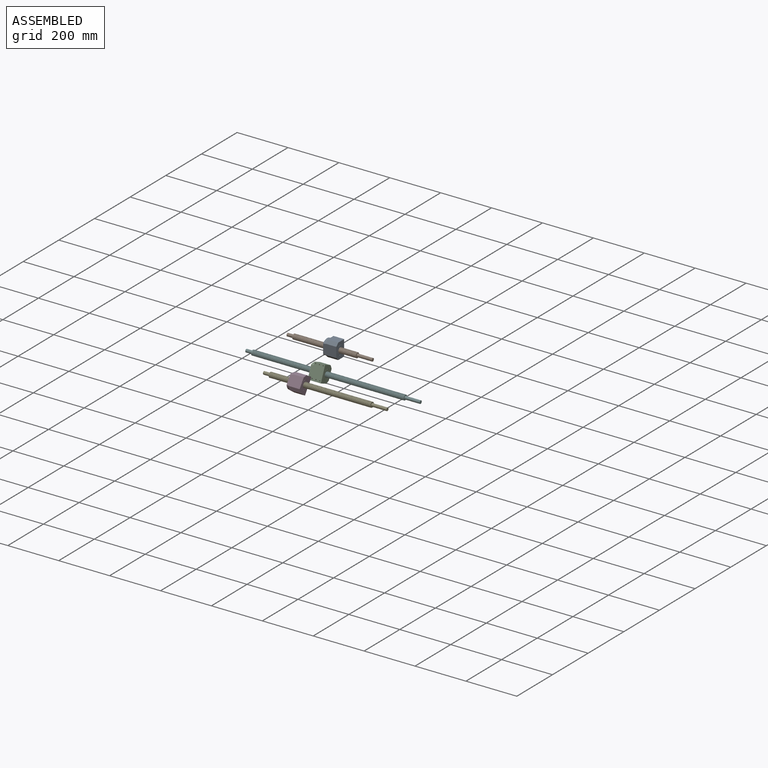
[diagram: assembled view]
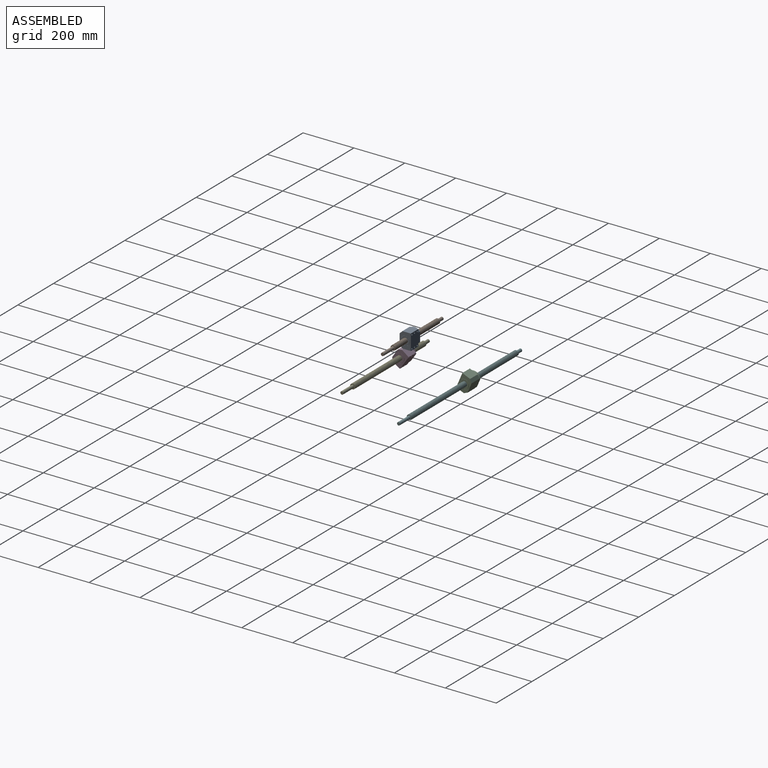
[diagram: assembled view, second angle]
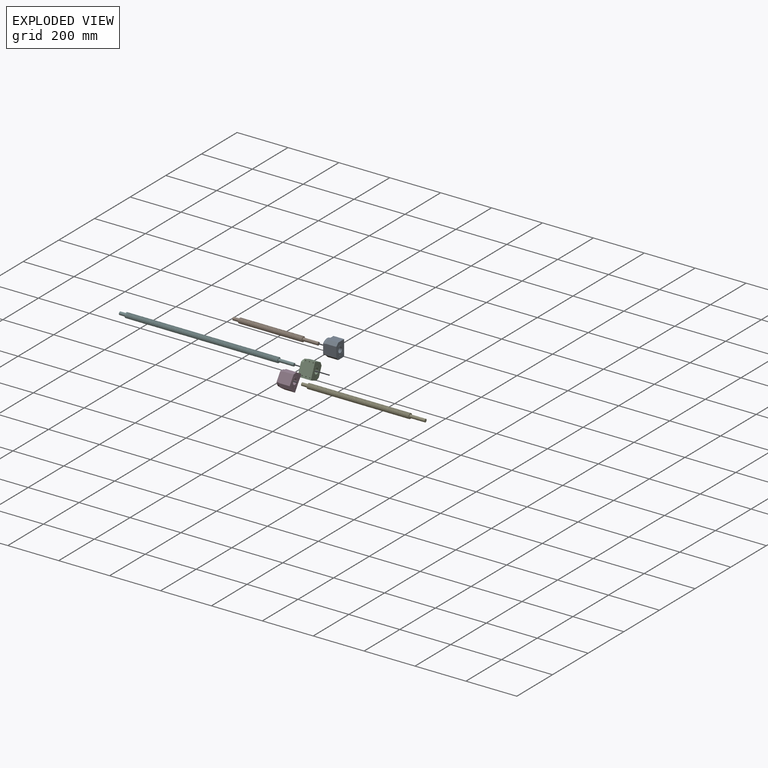
[diagram: exploded view]
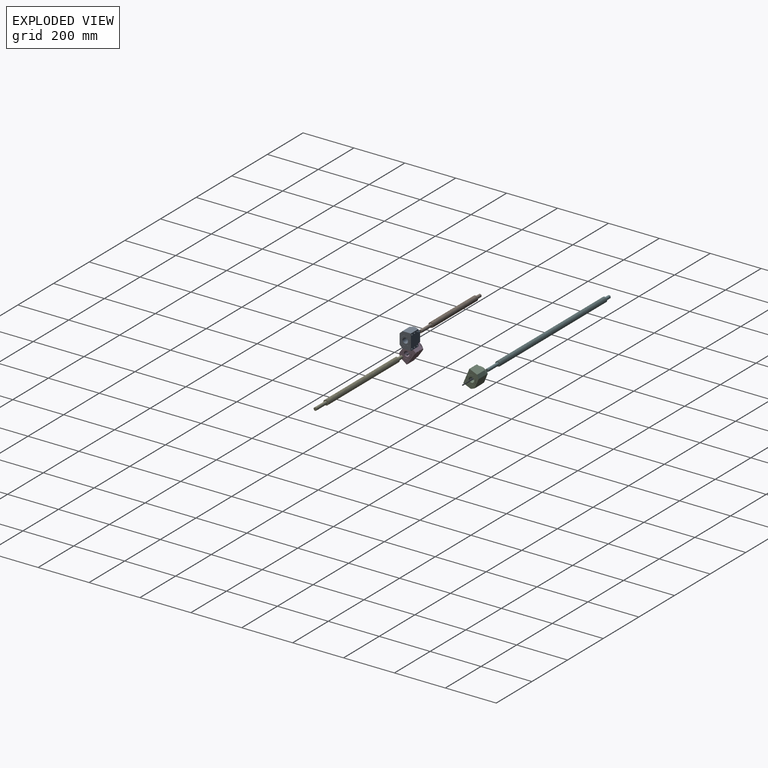
[diagram: exploded view, second angle]
ASSEMBLY  parts=6 mates=3
PART A: 62 faces, bbox 52x44.6x62 mm
  f0: cone r=17.72mm half-angle=45deg, axis (-1,0,0), area 56.4mm2, adj f1,f35
  f1: cylinder r=17.9mm len=35.8mm, axis (-1,0,0), area 3558.7mm2, adj f0,f34
  f2: cone r=28.82mm half-angle=45deg, axis (-1,0,0), area 25.3mm2, adj f3,f31,f32,f44
  f3: cylinder r=29mm len=44mm, axis (-1,0,0), area 463.7mm2, adj f2,f4,f31,f32
  f4: cone r=28.82mm half-angle=45deg, axis (1,0,0), area 25.3mm2, adj f3,f31,f32,f33
  f5: cone r=3.63mm half-angle=45deg, axis (-1,0,0), area 21.3mm2, adj f6,f33
  f6: cylinder r=3.3mm len=8.68mm, axis (1,0,0), area 180mm2, adj f5,f7
  f7: cone r=3.63mm half-angle=45deg, axis (1,0,0), area 21.3mm2, adj f6,f36
  f8: cone r=3.63mm half-angle=45deg, axis (-1,0,0), area 21.3mm2, adj f9,f33
  f9: cylinder r=3.3mm len=8.68mm, axis (1,0,0), area 180mm2, adj f8,f10
  f10: cone r=3.63mm half-angle=45deg, axis (1,0,0), area 21.3mm2, adj f9,f37
  f11: cone r=3.63mm half-angle=45deg, axis (-1,0,0), area 21.3mm2, adj f12,f33
  f12: cylinder r=3.3mm len=8.68mm, axis (1,0,0), area 180mm2, adj f11,f13
  f13: cone r=3.63mm half-angle=45deg, axis (1,0,0), area 21.3mm2, adj f12,f38
  f14: cone r=3.63mm half-angle=45deg, axis (-1,0,0), area 21.3mm2, adj f15,f33
  f15: cylinder r=3.3mm len=8.68mm, axis (1,0,0), area 180mm2, adj f14,f16
  f16: cone r=3.63mm half-angle=45deg, axis (1,0,0), area 21.3mm2, adj f15,f39
  f17: cone r=3.63mm half-angle=45deg, axis (-1,0,0), area 21.3mm2, adj f18,f33
  f18: cylinder r=3.3mm len=8.68mm, axis (1,0,0), area 180mm2, adj f17,f19
  f19: cone r=3.63mm half-angle=45deg, axis (1,0,0), area 21.3mm2, adj f18,f40
  f20: cone r=3.63mm half-angle=45deg, axis (-1,0,0), area 21.3mm2, adj f21,f33
  f21: cylinder r=3.3mm len=8.68mm, axis (1,0,0), area 180mm2, adj f20,f22
  f22: cone r=3.63mm half-angle=45deg, axis (1,0,0), area 21.3mm2, adj f21,f41
  f23: cone r=28.82mm half-angle=45deg, axis (1,0,0), area 25.3mm2, adj f24,f31,f32,f33
  f24: cylinder r=29mm len=44mm, axis (-1,0,0), area 444.1mm2, adj f23,f25,f29,f31,f32
  f25: cone r=28.82mm half-angle=45deg, axis (-1,0,0), area 25.3mm2, adj f24,f31,f32,f43
  f26: cone r=10.2mm half-angle=45deg, axis (-1,0,0), area 36.3mm2, adj f27,f33
  f27: cylinder r=10mm len=51.2mm, axis (1,0,0), area 3217mm2, adj f26,f28
  f28: cone r=10.2mm half-angle=45deg, axis (1,0,0), area 36.3mm2, adj f27,f35
  f29: cylinder r=2.5mm len=12.08mm, axis (0,-0.38,-0.92), area 172.8mm2, adj f24,f30
  f30: cone r=1.25mm half-angle=59deg, axis (0,0.38,0.92), area 22.9mm2, adj f29
  f31: plane 62x52mm, normal (0,1,0), area 2863.7mm2, adj f2,f3,f4,f23,f24,f25,f33,f43
  f32: plane 52x40mm, normal (0,-1,0), area 2057.5mm2, adj f2,f3,f4,f23,f24,f25,f33,f43
  f33: plane 57.28x44mm, normal (-1,0,0), area 1608.7mm2, adj f4,f5,f8,f11,f14,f17,f20,f23
  f34: plane 36x36mm, normal (1,0,0), area 11.3mm2, adj f1,f42
  f35: plane 35.08x35.08mm, normal (1,0,0), area 626.9mm2, adj f0,f28
  f36: plane 7.92x7.92mm, normal (-1,0,0), area 49.3mm2, adj f7
  f37: plane 7.92x7.92mm, normal (-1,0,0), area 49.3mm2, adj f10
  f38: plane 7.92x7.92mm, normal (-1,0,0), area 49.3mm2, adj f13
  f39: plane 7.92x7.92mm, normal (-1,0,0), area 49.3mm2, adj f16
  f40: plane 7.92x7.92mm, normal (-1,0,0), area 49.3mm2, adj f19
  f41: plane 7.92x7.92mm, normal (-1,0,0), area 49.3mm2, adj f22
  f42: cylinder r=18mm len=36mm, axis (-1,0,0), area 3619.1mm2, adj f34,f49
  f43: plane 44x12.66mm, normal (-1,0,0), area 181.5mm2, adj f25,f31,f32,f47,f48
  f44: plane 44x12.66mm, normal (-1,0,0), area 181.5mm2, adj f2,f31,f32,f45,f46
  f45: plane 42x11mm, normal (0,-0.71,-0.71), area 653.4mm2, adj f32,f44,f46,f49
  f46: plane 42x33mm, normal (0,0,-1), area 1386mm2, adj f31,f44,f45,f49
  f47: plane 42x33mm, normal (0,0,1), area 1386mm2, adj f31,f43,f48,f49
  f48: plane 42x11mm, normal (0,-0.71,0.71), area 653.4mm2, adj f32,f43,f47,f49
  f49: plane 62x44mm, normal (1,0,0), area 1589.1mm2, adj f31,f32,f42,f45,f46,f47,f48
  f50: cylinder r=2.5mm len=16mm, axis (0,1,0), area 251.3mm2, adj f31,f51
  f51: plane 5x5mm, normal (0,1,0), area 19.6mm2, adj f50
  f52: cylinder r=2.5mm len=16mm, axis (0,1,0), area 251.3mm2, adj f31,f53
  f53: plane 5x5mm, normal (0,1,0), area 19.6mm2, adj f52
  f54: cylinder r=2.5mm len=16mm, axis (0,1,0), area 251.3mm2, adj f31,f55
  f55: plane 5x5mm, normal (0,1,0), area 19.6mm2, adj f54
  f56: cylinder r=2.5mm len=16mm, axis (0,1,0), area 251.3mm2, adj f31,f57
  f57: plane 5x5mm, normal (0,1,0), area 19.6mm2, adj f56
  f58: cylinder r=2.5mm len=16mm, axis (0,1,0), area 251.3mm2, adj f31,f59
  f59: plane 5x5mm, normal (0,1,0), area 19.6mm2, adj f58
  f60: cylinder r=2.5mm len=16mm, axis (0,1,0), area 251.3mm2, adj f31,f61
  f61: plane 5x5mm, normal (0,1,0), area 19.6mm2, adj f60
PART B: 58 faces, bbox 336.2x21.2x21.2 mm
  f0: cylinder r=6mm len=60mm, axis (-1,0,0), area 2261.9mm2, adj f1,f55
  f1: plane 21.25x19.99mm, normal (1,0,0), area 171.8mm2, adj f0,f51,f57
  f2: cylinder r=10mm len=20mm, axis (-1,0,0), area 157.1mm2, adj f3,f51,f57
  f3: cylinder r=10mm len=20mm, axis (-1,0,0), area 157.1mm2, adj f2,f4,f57
  f4: cylinder r=10mm len=20mm, axis (-1,0,0), area 157.1mm2, adj f3,f5,f57
  f5: cylinder r=10mm len=20mm, axis (-1,0,0), area 157.1mm2, adj f4,f6,f57
  f6: cylinder r=10mm len=20mm, axis (-1,0,0), area 157.1mm2, adj f5,f7,f57
  f7: cylinder r=10mm len=20mm, axis (-1,0,0), area 157.1mm2, adj f6,f8,f57
  f8: cylinder r=10mm len=20mm, axis (-1,0,0), area 157.1mm2, adj f7,f9,f57
  f9: cylinder r=10mm len=20mm, axis (-1,0,0), area 157.1mm2, adj f8,f10,f57
  f10: cylinder r=10mm len=20mm, axis (-1,0,0), area 157.1mm2, adj f9,f11,f57
  f11: cylinder r=10mm len=20mm, axis (-1,0,0), area 157.1mm2, adj f10,f12,f57
  f12: cylinder r=10mm len=20mm, axis (-1,0,0), area 157.1mm2, adj f11,f13,f57
  f13: cylinder r=10mm len=20mm, axis (-1,0,0), area 157.1mm2, adj f12,f14,f57
  f14: cylinder r=10mm len=20mm, axis (-1,0,0), area 157.1mm2, adj f13,f15,f57
  f15: cylinder r=10mm len=20mm, axis (-1,0,0), area 157.1mm2, adj f14,f16,f57
  f16: cylinder r=10mm len=20mm, axis (-1,0,0), area 157.1mm2, adj f15,f17,f57
  f17: cylinder r=10mm len=20mm, axis (-1,0,0), area 157.1mm2, adj f16,f18,f57
  f18: cylinder r=10mm len=20mm, axis (-1,0,0), area 157.1mm2, adj f17,f19,f57
  f19: cylinder r=10mm len=20mm, axis (-1,0,0), area 157.1mm2, adj f18,f20,f57
  f20: cylinder r=10mm len=20mm, axis (-1,0,0), area 157.1mm2, adj f19,f21,f57
  f21: cylinder r=10mm len=20mm, axis (-1,0,0), area 157.1mm2, adj f20,f22,f57
  f22: cylinder r=10mm len=20mm, axis (-1,0,0), area 157.1mm2, adj f21,f23,f57
  f23: cylinder r=10mm len=20mm, axis (-1,0,0), area 157.1mm2, adj f22,f24,f57
  f24: cylinder r=10mm len=20mm, axis (-1,0,0), area 157.1mm2, adj f23,f25,f57
  f25: cylinder r=10mm len=20mm, axis (-1,0,0), area 157.1mm2, adj f24,f26,f57
  f26: cylinder r=10mm len=20mm, axis (-1,0,0), area 157.1mm2, adj f25,f27,f57
  f27: cylinder r=10mm len=20mm, axis (-1,0,0), area 157.1mm2, adj f26,f28,f57
  f28: cylinder r=10mm len=20mm, axis (-1,0,0), area 157.1mm2, adj f27,f29,f57
  f29: cylinder r=10mm len=20mm, axis (-1,0,0), area 157.1mm2, adj f28,f30,f57
  f30: cylinder r=10mm len=20mm, axis (-1,0,0), area 157.1mm2, adj f29,f31,f57
  f31: cylinder r=10mm len=20mm, axis (-1,0,0), area 157.1mm2, adj f30,f32,f57
  f32: cylinder r=10mm len=20mm, axis (-1,0,0), area 157.1mm2, adj f31,f33,f57
  f33: cylinder r=10mm len=20mm, axis (-1,0,0), area 157.1mm2, adj f32,f34,f57
  f34: cylinder r=10mm len=20mm, axis (-1,0,0), area 157.1mm2, adj f33,f35,f57
  f35: cylinder r=10mm len=20mm, axis (-1,0,0), area 157.1mm2, adj f34,f36,f57
  f36: cylinder r=10mm len=20mm, axis (-1,0,0), area 157.1mm2, adj f35,f37,f57
  f37: cylinder r=10mm len=20mm, axis (-1,0,0), area 157.1mm2, adj f36,f38,f57
  f38: cylinder r=10mm len=20mm, axis (-1,0,0), area 157.1mm2, adj f37,f39,f57
  f39: cylinder r=10mm len=20mm, axis (-1,0,0), area 157.1mm2, adj f38,f40,f57
  f40: cylinder r=10mm len=20mm, axis (-1,0,0), area 157.1mm2, adj f39,f41,f57
  f41: cylinder r=10mm len=20mm, axis (-1,0,0), area 157.1mm2, adj f40,f42,f57
  f42: cylinder r=10mm len=20mm, axis (-1,0,0), area 157.1mm2, adj f41,f43,f57
  f43: cylinder r=10mm len=20mm, axis (-1,0,0), area 157.1mm2, adj f42,f44,f57
  f44: cylinder r=10mm len=20mm, axis (-1,0,0), area 157.1mm2, adj f43,f45,f57
  f45: cylinder r=10mm len=20mm, axis (-1,0,0), area 157.1mm2, adj f44,f46,f57
  f46: cylinder r=10mm len=20mm, axis (-1,0,0), area 157.1mm2, adj f45,f47,f57
  f47: cylinder r=10mm len=20mm, axis (-1,0,0), area 157.1mm2, adj f46,f48,f57
  f48: cylinder r=10mm len=20mm, axis (-1,0,0), area 157.1mm2, adj f47,f49,f57
  f49: cylinder r=10mm len=20mm, axis (-1,0,0), area 157.1mm2, adj f48,f50,f57
  f50: cylinder r=10mm len=20mm, axis (-1,0,0), area 353.4mm2, adj f49,f52,f56,f57
  f51: cylinder r=10mm len=20mm, axis (-1,0,0), area 39.3mm2, adj f1,f2,f57
  f52: plane 20x20mm, normal (-1,0,0), area 201.1mm2, adj f50,f53
  f53: cylinder r=6mm len=25mm, axis (-1,0,0), area 942.5mm2, adj f52,f54
  f54: plane 12x12mm, normal (-1,0,0), area 113.1mm2, adj f53
  f55: plane 12x12mm, normal (1,0,0), area 113.1mm2, adj f0
  f56: plane 2.85x1.6mm, normal (0,0,-1), area 2.5mm2, adj f50,f57
  f57: bspline ~251.25x20mm, area 11263.4mm2, adj f1,f2,f3,f4,f5,f6,f7,f8
PART C: same geometry as A
PART D: same geometry as A
PART E: 89 faces, bbox 485.9x22.7x26.1 mm
  f0: cylinder r=6mm len=60mm, axis (-1,0,0), area 2261.9mm2, adj f1,f85
  f1: plane 20.95x20.95mm, normal (1,0,0), area 186.4mm2, adj f0,f80,f81,f87,f88
  f2: cylinder r=10mm len=20mm, axis (-1,0,0), area 490.9mm2, adj f3,f82,f86,f87,f88
  f3: cylinder r=10mm len=20mm, axis (-1,0,0), area 235.6mm2, adj f2,f4,f87,f88
  f4: cylinder r=10mm len=20mm, axis (-1,0,0), area 235.6mm2, adj f3,f5,f87,f88
  f5: cylinder r=10mm len=20mm, axis (-1,0,0), area 235.6mm2, adj f4,f6,f87,f88
  f6: cylinder r=10mm len=20mm, axis (-1,0,0), area 235.6mm2, adj f5,f7,f87,f88
  f7: cylinder r=10mm len=20mm, axis (-1,0,0), area 235.6mm2, adj f6,f8,f87,f88
  f8: cylinder r=10mm len=20mm, axis (-1,0,0), area 235.6mm2, adj f7,f9,f87,f88
  f9: cylinder r=10mm len=20mm, axis (-1,0,0), area 235.6mm2, adj f8,f10,f87,f88
  f10: cylinder r=10mm len=20mm, axis (-1,0,0), area 235.6mm2, adj f9,f11,f87,f88
  f11: cylinder r=10mm len=20mm, axis (-1,0,0), area 235.6mm2, adj f10,f12,f87,f88
  f12: cylinder r=10mm len=20mm, axis (-1,0,0), area 235.6mm2, adj f11,f13,f87,f88
  f13: cylinder r=10mm len=20mm, axis (-1,0,0), area 235.6mm2, adj f12,f14,f87,f88
  f14: cylinder r=10mm len=20mm, axis (-1,0,0), area 235.6mm2, adj f13,f15,f87,f88
  f15: cylinder r=10mm len=20mm, axis (-1,0,0), area 235.6mm2, adj f14,f16,f87,f88
  f16: cylinder r=10mm len=20mm, axis (-1,0,0), area 235.6mm2, adj f15,f17,f87,f88
  f17: cylinder r=10mm len=20mm, axis (-1,0,0), area 235.6mm2, adj f16,f18,f87,f88
  f18: cylinder r=10mm len=20mm, axis (-1,0,0), area 235.6mm2, adj f17,f19,f87,f88
  f19: cylinder r=10mm len=20mm, axis (-1,0,0), area 235.6mm2, adj f18,f20,f87,f88
  f20: cylinder r=10mm len=20mm, axis (-1,0,0), area 235.6mm2, adj f19,f21,f87,f88
  f21: cylinder r=10mm len=20mm, axis (-1,0,0), area 235.6mm2, adj f20,f22,f87,f88
  f22: cylinder r=10mm len=20mm, axis (-1,0,0), area 235.6mm2, adj f21,f23,f87,f88
  f23: cylinder r=10mm len=20mm, axis (-1,0,0), area 235.6mm2, adj f22,f24,f87,f88
  f24: cylinder r=10mm len=20mm, axis (-1,0,0), area 235.6mm2, adj f23,f25,f87,f88
  f25: cylinder r=10mm len=20mm, axis (-1,0,0), area 235.6mm2, adj f24,f26,f87,f88
  f26: cylinder r=10mm len=20mm, axis (-1,0,0), area 235.6mm2, adj f25,f27,f87,f88
  f27: cylinder r=10mm len=20mm, axis (-1,0,0), area 235.6mm2, adj f26,f28,f87,f88
  f28: cylinder r=10mm len=20mm, axis (-1,0,0), area 235.6mm2, adj f27,f29,f87,f88
  f29: cylinder r=10mm len=20mm, axis (-1,0,0), area 235.6mm2, adj f28,f30,f87,f88
  f30: cylinder r=10mm len=20mm, axis (-1,0,0), area 235.6mm2, adj f29,f31,f87,f88
  f31: cylinder r=10mm len=20mm, axis (-1,0,0), area 235.6mm2, adj f30,f32,f87,f88
  f32: cylinder r=10mm len=20mm, axis (-1,0,0), area 235.6mm2, adj f31,f33,f87,f88
  f33: cylinder r=10mm len=20mm, axis (-1,0,0), area 235.6mm2, adj f32,f34,f87,f88
  f34: cylinder r=10mm len=20mm, axis (-1,0,0), area 235.6mm2, adj f33,f35,f87,f88
  f35: cylinder r=10mm len=20mm, axis (-1,0,0), area 235.6mm2, adj f34,f36,f87,f88
  f36: cylinder r=10mm len=20mm, axis (-1,0,0), area 235.6mm2, adj f35,f37,f87,f88
  f37: cylinder r=10mm len=20mm, axis (-1,0,0), area 235.6mm2, adj f36,f38,f87,f88
  f38: cylinder r=10mm len=20mm, axis (-1,0,0), area 235.6mm2, adj f37,f39,f87,f88
  f39: cylinder r=10mm len=20mm, axis (-1,0,0), area 235.6mm2, adj f38,f40,f87,f88
  f40: cylinder r=10mm len=20mm, axis (-1,0,0), area 235.6mm2, adj f39,f41,f87,f88
  f41: cylinder r=10mm len=20mm, axis (-1,0,0), area 235.6mm2, adj f40,f42,f87,f88
  f42: cylinder r=10mm len=20mm, axis (-1,0,0), area 235.6mm2, adj f41,f43,f87,f88
  f43: cylinder r=10mm len=20mm, axis (-1,0,0), area 235.6mm2, adj f42,f44,f87,f88
  f44: cylinder r=10mm len=20mm, axis (-1,0,0), area 235.6mm2, adj f43,f45,f87,f88
  f45: cylinder r=10mm len=20mm, axis (-1,0,0), area 235.6mm2, adj f44,f46,f87,f88
  f46: cylinder r=10mm len=20mm, axis (-1,0,0), area 235.6mm2, adj f45,f47,f87,f88
  f47: cylinder r=10mm len=20mm, axis (-1,0,0), area 235.6mm2, adj f46,f48,f87,f88
  f48: cylinder r=10mm len=20mm, axis (-1,0,0), area 235.6mm2, adj f47,f49,f87,f88
  f49: cylinder r=10mm len=20mm, axis (-1,0,0), area 235.6mm2, adj f48,f50,f87,f88
  f50: cylinder r=10mm len=20mm, axis (-1,0,0), area 235.6mm2, adj f49,f51,f87,f88
  f51: cylinder r=10mm len=20mm, axis (-1,0,0), area 235.6mm2, adj f50,f52,f87,f88
  f52: cylinder r=10mm len=20mm, axis (-1,0,0), area 235.6mm2, adj f51,f53,f87,f88
  f53: cylinder r=10mm len=20mm, axis (-1,0,0), area 235.6mm2, adj f52,f54,f87,f88
  f54: cylinder r=10mm len=20mm, axis (-1,0,0), area 235.6mm2, adj f53,f55,f87,f88
  f55: cylinder r=10mm len=20mm, axis (-1,0,0), area 235.6mm2, adj f54,f56,f87,f88
  f56: cylinder r=10mm len=20mm, axis (-1,0,0), area 235.6mm2, adj f55,f57,f87,f88
  f57: cylinder r=10mm len=20mm, axis (-1,0,0), area 235.6mm2, adj f56,f58,f87,f88
  f58: cylinder r=10mm len=20mm, axis (-1,0,0), area 235.6mm2, adj f57,f59,f87,f88
  f59: cylinder r=10mm len=20mm, axis (-1,0,0), area 235.6mm2, adj f58,f60,f87,f88
  f60: cylinder r=10mm len=20mm, axis (-1,0,0), area 235.6mm2, adj f59,f61,f87,f88
  f61: cylinder r=10mm len=20mm, axis (-1,0,0), area 235.6mm2, adj f60,f62,f87,f88
  f62: cylinder r=10mm len=20mm, axis (-1,0,0), area 235.6mm2, adj f61,f63,f87,f88
  f63: cylinder r=10mm len=20mm, axis (-1,0,0), area 235.6mm2, adj f62,f64,f87,f88
  f64: cylinder r=10mm len=20mm, axis (-1,0,0), area 235.6mm2, adj f63,f65,f87,f88
  f65: cylinder r=10mm len=20mm, axis (-1,0,0), area 235.6mm2, adj f64,f66,f87,f88
  f66: cylinder r=10mm len=20mm, axis (-1,0,0), area 235.6mm2, adj f65,f67,f87,f88
  f67: cylinder r=10mm len=20mm, axis (-1,0,0), area 235.6mm2, adj f66,f68,f87,f88
  f68: cylinder r=10mm len=20mm, axis (-1,0,0), area 235.6mm2, adj f67,f69,f87,f88
  f69: cylinder r=10mm len=20mm, axis (-1,0,0), area 235.6mm2, adj f68,f70,f87,f88
  f70: cylinder r=10mm len=20mm, axis (-1,0,0), area 235.6mm2, adj f69,f71,f87,f88
  f71: cylinder r=10mm len=20mm, axis (-1,0,0), area 235.6mm2, adj f70,f72,f87,f88
  f72: cylinder r=10mm len=20mm, axis (-1,0,0), area 235.6mm2, adj f71,f73,f87,f88
  f73: cylinder r=10mm len=20mm, axis (-1,0,0), area 235.6mm2, adj f72,f74,f87,f88
  f74: cylinder r=10mm len=20mm, axis (-1,0,0), area 235.6mm2, adj f73,f75,f87,f88
  f75: cylinder r=10mm len=20mm, axis (-1,0,0), area 235.6mm2, adj f74,f76,f87,f88
  f76: cylinder r=10mm len=20mm, axis (-1,0,0), area 235.6mm2, adj f75,f77,f87,f88
  f77: cylinder r=10mm len=20mm, axis (-1,0,0), area 235.6mm2, adj f76,f78,f87,f88
  f78: cylinder r=10mm len=20mm, axis (-1,0,0), area 235.6mm2, adj f77,f79,f87,f88
  f79: cylinder r=10mm len=20mm, axis (-1,0,0), area 235.6mm2, adj f78,f80,f87,f88
  f80: cylinder r=10mm len=20mm, axis (-1,0,0), area 225.8mm2, adj f1,f79,f81,f87,f88
  f81: cylinder r=10mm len=20mm, axis (-1,0,0), area 39.3mm2, adj f1,f80,f87
  f82: plane 20x20mm, normal (-1,0,0), area 201.1mm2, adj f2,f83
  f83: cylinder r=6mm len=25mm, axis (-1,0,0), area 942.5mm2, adj f82,f84
  f84: plane 12x12mm, normal (-1,0,0), area 113.1mm2, adj f83
  f85: plane 12x12mm, normal (1,0,0), area 113.1mm2, adj f0
  f86: plane 1.43x1.43mm, normal (0,0,-1), area 1.2mm2, adj f2,f87,f88
  f87: bspline ~399.31x25.14mm, area 9029.6mm2, adj f1,f2,f3,f4,f5,f6,f7,f8
  f88: bspline ~397.5x23.09mm, area 5871.2mm2, adj f1,f2,f3,f4,f5,f6,f7,f8
PART F: 128 faces, bbox 686.2x21.2x21.2 mm
  f0: cylinder r=6mm len=60mm, axis (-1,0,0), area 2261.9mm2, adj f1,f125
  f1: plane 21.25x19.99mm, normal (1,0,0), area 171.8mm2, adj f0,f121,f127
  f2: cylinder r=10mm len=20mm, axis (-1,0,0), area 157.1mm2, adj f3,f121,f127
  f3: cylinder r=10mm len=20mm, axis (-1,0,0), area 157.1mm2, adj f2,f4,f127
  f4: cylinder r=10mm len=20mm, axis (-1,0,0), area 157.1mm2, adj f3,f5,f127
  f5: cylinder r=10mm len=20mm, axis (-1,0,0), area 157.1mm2, adj f4,f6,f127
  f6: cylinder r=10mm len=20mm, axis (-1,0,0), area 157.1mm2, adj f5,f7,f127
  f7: cylinder r=10mm len=20mm, axis (-1,0,0), area 157.1mm2, adj f6,f8,f127
  f8: cylinder r=10mm len=20mm, axis (-1,0,0), area 157.1mm2, adj f7,f9,f127
  f9: cylinder r=10mm len=20mm, axis (-1,0,0), area 157.1mm2, adj f8,f10,f127
  f10: cylinder r=10mm len=20mm, axis (-1,0,0), area 157.1mm2, adj f9,f11,f127
  f11: cylinder r=10mm len=20mm, axis (-1,0,0), area 157.1mm2, adj f10,f12,f127
  f12: cylinder r=10mm len=20mm, axis (-1,0,0), area 157.1mm2, adj f11,f13,f127
  f13: cylinder r=10mm len=20mm, axis (-1,0,0), area 157.1mm2, adj f12,f14,f127
  f14: cylinder r=10mm len=20mm, axis (-1,0,0), area 157.1mm2, adj f13,f15,f127
  f15: cylinder r=10mm len=20mm, axis (-1,0,0), area 157.1mm2, adj f14,f16,f127
  f16: cylinder r=10mm len=20mm, axis (-1,0,0), area 157.1mm2, adj f15,f17,f127
  f17: cylinder r=10mm len=20mm, axis (-1,0,0), area 157.1mm2, adj f16,f18,f127
  f18: cylinder r=10mm len=20mm, axis (-1,0,0), area 157.1mm2, adj f17,f19,f127
  f19: cylinder r=10mm len=20mm, axis (-1,0,0), area 157.1mm2, adj f18,f20,f127
  f20: cylinder r=10mm len=20mm, axis (-1,0,0), area 157.1mm2, adj f19,f21,f127
  f21: cylinder r=10mm len=20mm, axis (-1,0,0), area 157.1mm2, adj f20,f22,f127
  f22: cylinder r=10mm len=20mm, axis (-1,0,0), area 157.1mm2, adj f21,f23,f127
  f23: cylinder r=10mm len=20mm, axis (-1,0,0), area 157.1mm2, adj f22,f24,f127
  f24: cylinder r=10mm len=20mm, axis (-1,0,0), area 157.1mm2, adj f23,f25,f127
  f25: cylinder r=10mm len=20mm, axis (-1,0,0), area 157.1mm2, adj f24,f26,f127
  f26: cylinder r=10mm len=20mm, axis (-1,0,0), area 157.1mm2, adj f25,f27,f127
  f27: cylinder r=10mm len=20mm, axis (-1,0,0), area 157.1mm2, adj f26,f28,f127
  f28: cylinder r=10mm len=20mm, axis (-1,0,0), area 157.1mm2, adj f27,f29,f127
  f29: cylinder r=10mm len=20mm, axis (-1,0,0), area 157.1mm2, adj f28,f30,f127
  f30: cylinder r=10mm len=20mm, axis (-1,0,0), area 157.1mm2, adj f29,f31,f127
  f31: cylinder r=10mm len=20mm, axis (-1,0,0), area 157.1mm2, adj f30,f32,f127
  f32: cylinder r=10mm len=20mm, axis (-1,0,0), area 157.1mm2, adj f31,f33,f127
  f33: cylinder r=10mm len=20mm, axis (-1,0,0), area 157.1mm2, adj f32,f34,f127
  f34: cylinder r=10mm len=20mm, axis (-1,0,0), area 157.1mm2, adj f33,f35,f127
  f35: cylinder r=10mm len=20mm, axis (-1,0,0), area 157.1mm2, adj f34,f36,f127
  f36: cylinder r=10mm len=20mm, axis (-1,0,0), area 157.1mm2, adj f35,f37,f127
  f37: cylinder r=10mm len=20mm, axis (-1,0,0), area 157.1mm2, adj f36,f38,f127
  f38: cylinder r=10mm len=20mm, axis (-1,0,0), area 157.1mm2, adj f37,f39,f127
  f39: cylinder r=10mm len=20mm, axis (-1,0,0), area 157.1mm2, adj f38,f40,f127
  f40: cylinder r=10mm len=20mm, axis (-1,0,0), area 157.1mm2, adj f39,f41,f127
  f41: cylinder r=10mm len=20mm, axis (-1,0,0), area 157.1mm2, adj f40,f42,f127
  f42: cylinder r=10mm len=20mm, axis (-1,0,0), area 157.1mm2, adj f41,f43,f127
  f43: cylinder r=10mm len=20mm, axis (-1,0,0), area 157.1mm2, adj f42,f44,f127
  f44: cylinder r=10mm len=20mm, axis (-1,0,0), area 157.1mm2, adj f43,f45,f127
  f45: cylinder r=10mm len=20mm, axis (-1,0,0), area 157.1mm2, adj f44,f46,f127
  f46: cylinder r=10mm len=20mm, axis (-1,0,0), area 157.1mm2, adj f45,f47,f127
  f47: cylinder r=10mm len=20mm, axis (-1,0,0), area 157.1mm2, adj f46,f48,f127
  f48: cylinder r=10mm len=20mm, axis (-1,0,0), area 157.1mm2, adj f47,f49,f127
  f49: cylinder r=10mm len=20mm, axis (-1,0,0), area 157.1mm2, adj f48,f50,f127
  f50: cylinder r=10mm len=20mm, axis (-1,0,0), area 157.1mm2, adj f49,f51,f127
  f51: cylinder r=10mm len=20mm, axis (-1,0,0), area 157.1mm2, adj f50,f52,f127
  f52: cylinder r=10mm len=20mm, axis (-1,0,0), area 157.1mm2, adj f51,f53,f127
  f53: cylinder r=10mm len=20mm, axis (-1,0,0), area 157.1mm2, adj f52,f54,f127
  f54: cylinder r=10mm len=20mm, axis (-1,0,0), area 157.1mm2, adj f53,f55,f127
  f55: cylinder r=10mm len=20mm, axis (-1,0,0), area 157.1mm2, adj f54,f56,f127
  f56: cylinder r=10mm len=20mm, axis (-1,0,0), area 157.1mm2, adj f55,f57,f127
  f57: cylinder r=10mm len=20mm, axis (-1,0,0), area 157.1mm2, adj f56,f58,f127
  f58: cylinder r=10mm len=20mm, axis (-1,0,0), area 157.1mm2, adj f57,f59,f127
  f59: cylinder r=10mm len=20mm, axis (-1,0,0), area 157.1mm2, adj f58,f60,f127
  f60: cylinder r=10mm len=20mm, axis (-1,0,0), area 157.1mm2, adj f59,f61,f127
  f61: cylinder r=10mm len=20mm, axis (-1,0,0), area 157.1mm2, adj f60,f62,f127
  f62: cylinder r=10mm len=20mm, axis (-1,0,0), area 157.1mm2, adj f61,f63,f127
  f63: cylinder r=10mm len=20mm, axis (-1,0,0), area 157.1mm2, adj f62,f64,f127
  f64: cylinder r=10mm len=20mm, axis (-1,0,0), area 157.1mm2, adj f63,f65,f127
  f65: cylinder r=10mm len=20mm, axis (-1,0,0), area 157.1mm2, adj f64,f66,f127
  f66: cylinder r=10mm len=20mm, axis (-1,0,0), area 157.1mm2, adj f65,f67,f127
  f67: cylinder r=10mm len=20mm, axis (-1,0,0), area 157.1mm2, adj f66,f68,f127
  f68: cylinder r=10mm len=20mm, axis (-1,0,0), area 157.1mm2, adj f67,f69,f127
  f69: cylinder r=10mm len=20mm, axis (-1,0,0), area 157.1mm2, adj f68,f70,f127
  f70: cylinder r=10mm len=20mm, axis (-1,0,0), area 157.1mm2, adj f69,f71,f127
  f71: cylinder r=10mm len=20mm, axis (-1,0,0), area 157.1mm2, adj f70,f72,f127
  f72: cylinder r=10mm len=20mm, axis (-1,0,0), area 157.1mm2, adj f71,f73,f127
  f73: cylinder r=10mm len=20mm, axis (-1,0,0), area 157.1mm2, adj f72,f74,f127
  f74: cylinder r=10mm len=20mm, axis (-1,0,0), area 157.1mm2, adj f73,f75,f127
  f75: cylinder r=10mm len=20mm, axis (-1,0,0), area 157.1mm2, adj f74,f76,f127
  f76: cylinder r=10mm len=20mm, axis (-1,0,0), area 157.1mm2, adj f75,f77,f127
  f77: cylinder r=10mm len=20mm, axis (-1,0,0), area 157.1mm2, adj f76,f78,f127
  f78: cylinder r=10mm len=20mm, axis (-1,0,0), area 157.1mm2, adj f77,f79,f127
  f79: cylinder r=10mm len=20mm, axis (-1,0,0), area 157.1mm2, adj f78,f80,f127
  f80: cylinder r=10mm len=20mm, axis (-1,0,0), area 157.1mm2, adj f79,f81,f127
  f81: cylinder r=10mm len=20mm, axis (-1,0,0), area 157.1mm2, adj f80,f82,f127
  f82: cylinder r=10mm len=20mm, axis (-1,0,0), area 157.1mm2, adj f81,f83,f127
  f83: cylinder r=10mm len=20mm, axis (-1,0,0), area 157.1mm2, adj f82,f84,f127
  f84: cylinder r=10mm len=20mm, axis (-1,0,0), area 157.1mm2, adj f83,f85,f127
  f85: cylinder r=10mm len=20mm, axis (-1,0,0), area 157.1mm2, adj f84,f86,f127
  f86: cylinder r=10mm len=20mm, axis (-1,0,0), area 157.1mm2, adj f85,f87,f127
  f87: cylinder r=10mm len=20mm, axis (-1,0,0), area 157.1mm2, adj f86,f88,f127
  f88: cylinder r=10mm len=20mm, axis (-1,0,0), area 157.1mm2, adj f87,f89,f127
  f89: cylinder r=10mm len=20mm, axis (-1,0,0), area 157.1mm2, adj f88,f90,f127
  f90: cylinder r=10mm len=20mm, axis (-1,0,0), area 157.1mm2, adj f89,f91,f127
  f91: cylinder r=10mm len=20mm, axis (-1,0,0), area 157.1mm2, adj f90,f92,f127
  f92: cylinder r=10mm len=20mm, axis (-1,0,0), area 157.1mm2, adj f91,f93,f127
  f93: cylinder r=10mm len=20mm, axis (-1,0,0), area 157.1mm2, adj f92,f94,f127
  f94: cylinder r=10mm len=20mm, axis (-1,0,0), area 157.1mm2, adj f93,f95,f127
  f95: cylinder r=10mm len=20mm, axis (-1,0,0), area 157.1mm2, adj f94,f96,f127
  f96: cylinder r=10mm len=20mm, axis (-1,0,0), area 157.1mm2, adj f95,f97,f127
  f97: cylinder r=10mm len=20mm, axis (-1,0,0), area 157.1mm2, adj f96,f98,f127
  f98: cylinder r=10mm len=20mm, axis (-1,0,0), area 157.1mm2, adj f97,f99,f127
  f99: cylinder r=10mm len=20mm, axis (-1,0,0), area 157.1mm2, adj f98,f100,f127
  f100: cylinder r=10mm len=20mm, axis (-1,0,0), area 157.1mm2, adj f99,f101,f127
  f101: cylinder r=10mm len=20mm, axis (-1,0,0), area 157.1mm2, adj f100,f102,f127
  f102: cylinder r=10mm len=20mm, axis (-1,0,0), area 157.1mm2, adj f101,f103,f127
  f103: cylinder r=10mm len=20mm, axis (-1,0,0), area 157.1mm2, adj f102,f104,f127
  f104: cylinder r=10mm len=20mm, axis (-1,0,0), area 157.1mm2, adj f103,f105,f127
  f105: cylinder r=10mm len=20mm, axis (-1,0,0), area 157.1mm2, adj f104,f106,f127
  f106: cylinder r=10mm len=20mm, axis (-1,0,0), area 157.1mm2, adj f105,f107,f127
  f107: cylinder r=10mm len=20mm, axis (-1,0,0), area 157.1mm2, adj f106,f108,f127
  f108: cylinder r=10mm len=20mm, axis (-1,0,0), area 157.1mm2, adj f107,f109,f127
  f109: cylinder r=10mm len=20mm, axis (-1,0,0), area 157.1mm2, adj f108,f110,f127
  f110: cylinder r=10mm len=20mm, axis (-1,0,0), area 157.1mm2, adj f109,f111,f127
  f111: cylinder r=10mm len=20mm, axis (-1,0,0), area 157.1mm2, adj f110,f112,f127
  f112: cylinder r=10mm len=20mm, axis (-1,0,0), area 157.1mm2, adj f111,f113,f127
  f113: cylinder r=10mm len=20mm, axis (-1,0,0), area 157.1mm2, adj f112,f114,f127
  f114: cylinder r=10mm len=20mm, axis (-1,0,0), area 157.1mm2, adj f113,f115,f127
  f115: cylinder r=10mm len=20mm, axis (-1,0,0), area 157.1mm2, adj f114,f116,f127
  f116: cylinder r=10mm len=20mm, axis (-1,0,0), area 157.1mm2, adj f115,f117,f127
  f117: cylinder r=10mm len=20mm, axis (-1,0,0), area 157.1mm2, adj f116,f118,f127
  f118: cylinder r=10mm len=20mm, axis (-1,0,0), area 157.1mm2, adj f117,f119,f127
  f119: cylinder r=10mm len=20mm, axis (-1,0,0), area 157.1mm2, adj f118,f120,f127
  f120: cylinder r=10mm len=20mm, axis (-1,0,0), area 353.4mm2, adj f119,f122,f126,f127
  f121: cylinder r=10mm len=20mm, axis (-1,0,0), area 39.3mm2, adj f1,f2,f127
  f122: plane 20x20mm, normal (-1,0,0), area 201.1mm2, adj f120,f123
  f123: cylinder r=6mm len=25mm, axis (-1,0,0), area 942.5mm2, adj f122,f124
  f124: plane 12x12mm, normal (-1,0,0), area 113.1mm2, adj f123
  f125: plane 12x12mm, normal (1,0,0), area 113.1mm2, adj f0
  f126: plane 2.85x1.6mm, normal (0,0,-1), area 2.5mm2, adj f120,f127
  f127: bspline ~601.25x19.82mm, area 27191.6mm2, adj f1,f2,f3,f4,f5,f6,f7,f8
PLACE A t=(15.83,-152.85,130.12)mm
PLACE B rot(axis=(1,0,0),13.1deg) t=(33.98,-432.81,64.96)mm
PLACE C rot(axis=(1,0,0),157deg) t=(-129.26,-21.9,-44.55)mm
PLACE D rot(axis=(-1,0,0),34.7deg) t=(-66.93,-232.77,15.05)mm
PLACE E rot(axis=(-1,0,0),94.5deg) t=(-7.82,-216.54,221.08)mm
PLACE F rot(axis=(-1,0,0),20.3deg) t=(-224.76,-126.82,-5.8)mm
MATE cylindrical C.f0 <-> F.f0  axis (1,0,0) through (-103.86,-21.9,-44.55)mm
MATE cylindrical D.f0 <-> E.f0  axis (1,0,0) through (-41.53,-232.77,15.05)mm
MATE cylindrical A.f0 <-> B.f0  axis (1,0,0) through (41.23,-152.85,130.12)mm
